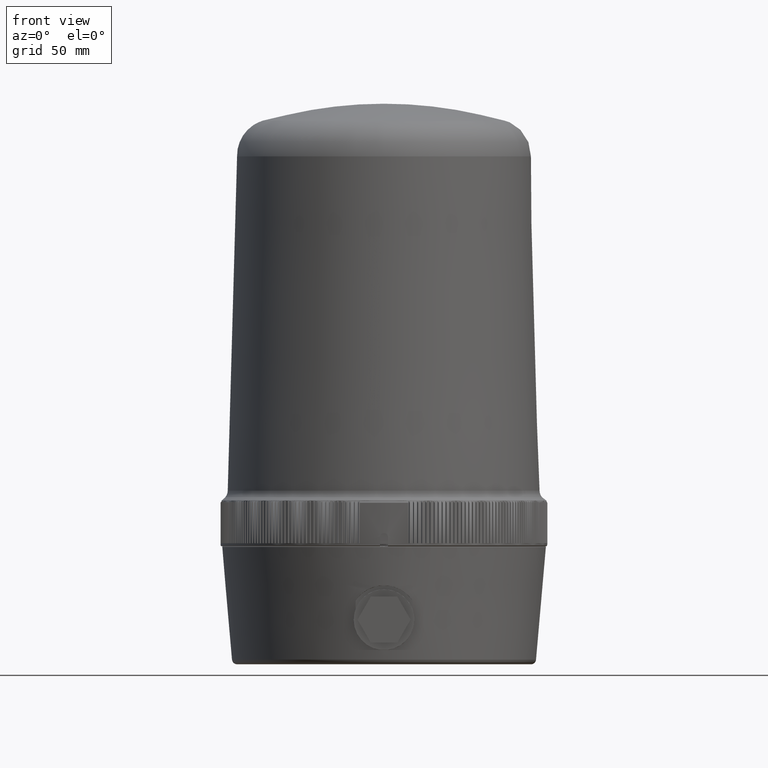
[diagram: clean part render]
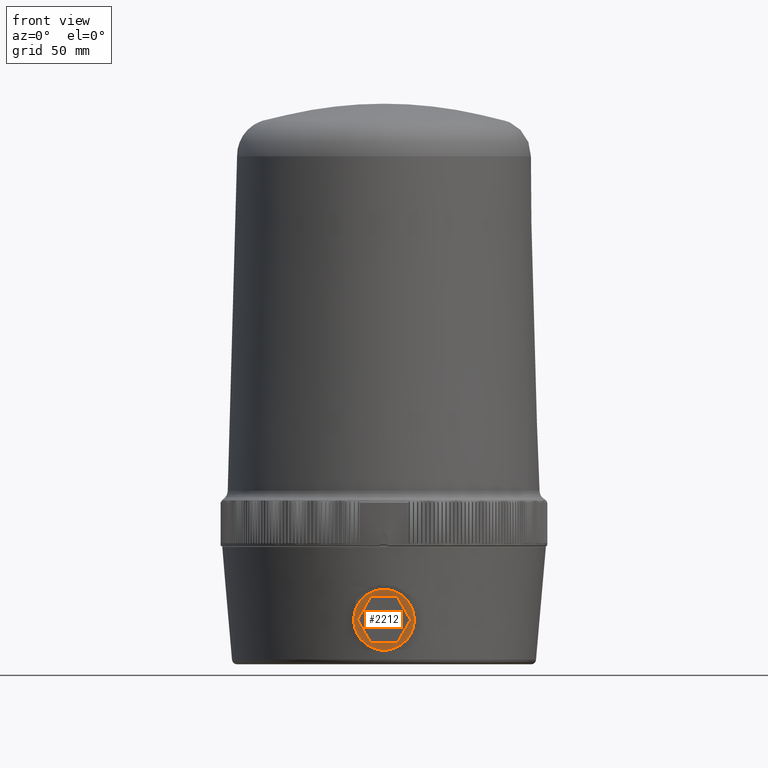
[diagram: same view with one face highlighted and labeled with its STEP entity id]
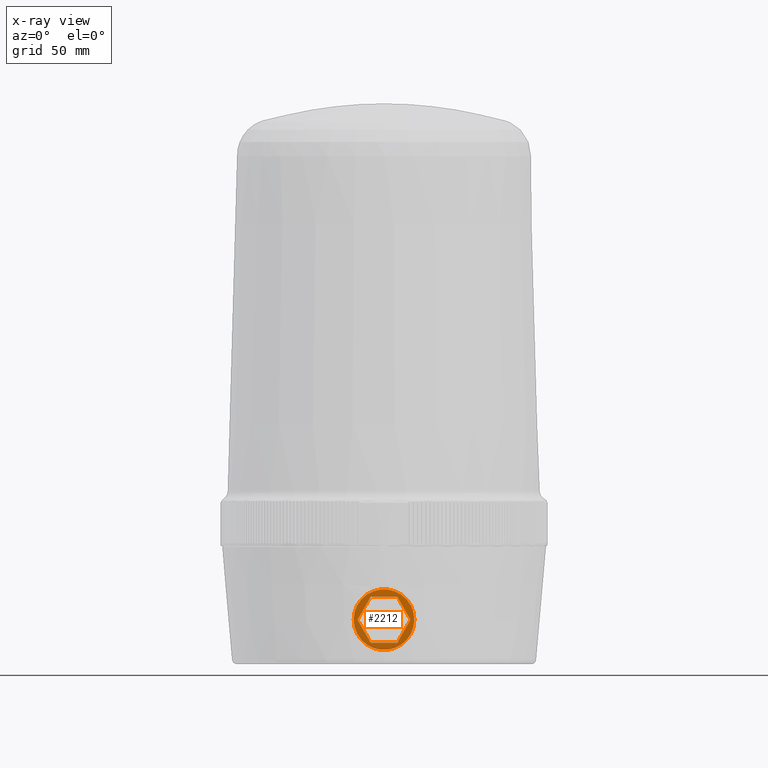
[diagram: x-ray of the same camera — body ghosted, the highlighted face saturated]
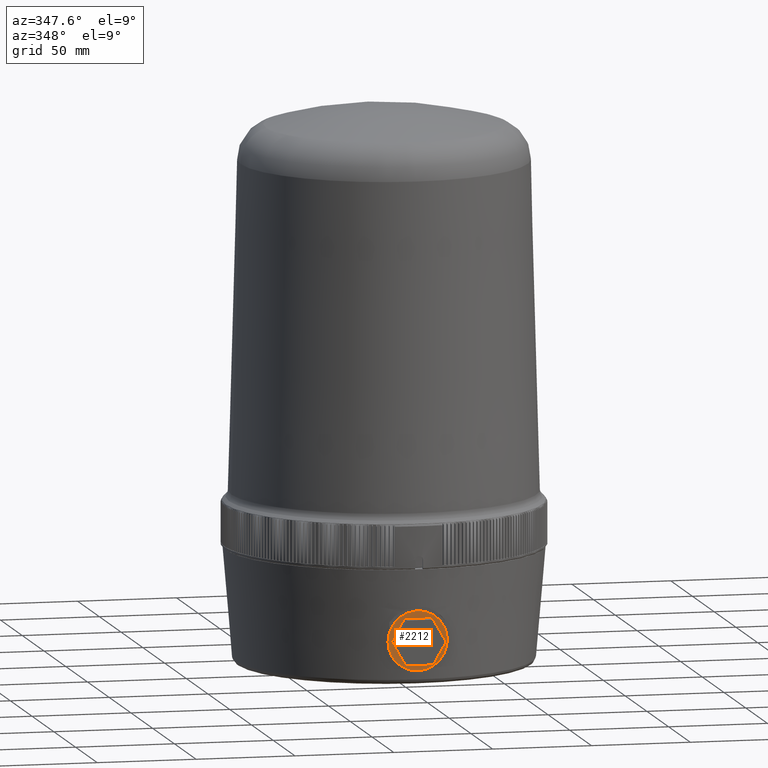
[diagram: same view with one face highlighted and labeled with its STEP entity id]
A machine part, front view. The second image highlights one B-rep face of the part: STEP entity #2212.
The next image is the same camera in x-ray: the body ghosted, the highlighted face saturated — about 0% of this face is hidden behind the body in this view.
A second angle (auxiliary view) of the same face is appended — the face is thin or edge-on in the first view.
In plain terms, the highlighted planar face has unit normal (0, -1, 0).
Its self-contained STEP definition (entity closure, byte-faithful):
#1148=FACE_BOUND('',#5124,.T.);
#1149=FACE_BOUND('',#5125,.T.);
#2212=ADVANCED_FACE('',(#1148,#1149),#3002,.T.);
#3002=PLANE('',#20228);
#5124=EDGE_LOOP('',(#13419));
#5125=EDGE_LOOP('',(#13420,#13421,#13422,#13423,#13424,#13425));
#6943=LINE('',#31613,#8283);
#6944=LINE('',#31616,#8284);
#6945=LINE('',#31618,#8285);
#6946=LINE('',#31620,#8286);
#6947=LINE('',#31622,#8287);
#6948=LINE('',#31624,#8288);
#8283=VECTOR('',#25192,1.);
#8284=VECTOR('',#25193,1.);
#8285=VECTOR('',#25194,1.);
#8286=VECTOR('',#25195,1.);
#8287=VECTOR('',#25196,1.);
#8288=VECTOR('',#25197,1.);
#13419=ORIENTED_EDGE('',*,*,#17622,.F.);
#13420=ORIENTED_EDGE('',*,*,#17623,.T.);
#13421=ORIENTED_EDGE('',*,*,#17624,.T.);
#13422=ORIENTED_EDGE('',*,*,#17625,.T.);
#13423=ORIENTED_EDGE('',*,*,#17626,.T.);
#13424=ORIENTED_EDGE('',*,*,#17627,.T.);
#13425=ORIENTED_EDGE('',*,*,#17628,.T.);
#15040=VERTEX_POINT('',#31612);
#15041=VERTEX_POINT('',#31614);
#15042=VERTEX_POINT('',#31615);
#15043=VERTEX_POINT('',#31617);
#15044=VERTEX_POINT('',#31619);
#15045=VERTEX_POINT('',#31621);
#15046=VERTEX_POINT('',#31623);
#17622=EDGE_CURVE('',#15040,#15040,#18411,.T.);
#17623=EDGE_CURVE('',#15041,#15042,#6943,.T.);
#17624=EDGE_CURVE('',#15042,#15043,#6944,.T.);
#17625=EDGE_CURVE('',#15043,#15044,#6945,.T.);
#17626=EDGE_CURVE('',#15044,#15045,#6946,.T.);
#17627=EDGE_CURVE('',#15045,#15046,#6947,.T.);
#17628=EDGE_CURVE('',#15046,#15041,#6948,.T.);
#18411=CIRCLE('',#20227,15.);
#20227=AXIS2_PLACEMENT_3D('',#31611,#25190,#25191);
#20228=AXIS2_PLACEMENT_3D('',#31625,#25198,#25199);
#25190=DIRECTION('',(0.,1.,0.));
#25191=DIRECTION('',(1.,0.,0.));
#25192=DIRECTION('',(1.,0.,-1.32362519712525E-016));
#25193=DIRECTION('',(0.5,0.,-0.866025403784438));
#25194=DIRECTION('',(-0.5,0.,-0.866025403784439));
#25195=DIRECTION('',(-1.,0.,0.));
#25196=DIRECTION('',(-0.5,0.,0.866025403784439));
#25197=DIRECTION('',(0.5,0.,0.866025403784438));
#25198=DIRECTION('',(0.,-1.,0.));
#25199=DIRECTION('',(-1.,0.,0.));
#31611=CARTESIAN_POINT('',(5.75331882829433E-013,-77.4,-18.5));
#31612=CARTESIAN_POINT('',(15.0000000000006,-77.4,-18.5));
#31613=CARTESIAN_POINT('',(-6.55292555530167,-77.4,-7.15));
#31614=CARTESIAN_POINT('',(-6.55292555530167,-77.4,-7.15));
#31615=CARTESIAN_POINT('',(6.55292555530282,-77.4,-7.15000000000001));
#31616=CARTESIAN_POINT('',(6.55292555530282,-77.4,-7.15000000000001));
#31617=CARTESIAN_POINT('',(13.1058511106051,-77.4,-18.5));
#31618=CARTESIAN_POINT('',(13.1058511106051,-77.4,-18.5));
#31619=CARTESIAN_POINT('',(6.55292555530282,-77.4,-29.85));
#31620=CARTESIAN_POINT('',(6.55292555530282,-77.4,-29.85));
#31621=CARTESIAN_POINT('',(-6.55292555530168,-77.4,-29.85));
#31622=CARTESIAN_POINT('',(-6.55292555530168,-77.4,-29.85));
#31623=CARTESIAN_POINT('',(-13.1058511106039,-77.4,-18.5));
#31624=CARTESIAN_POINT('',(-13.1058511106039,-77.4,-18.5));
#31625=CARTESIAN_POINT('',(5.75331882829433E-013,-77.4,-18.5));